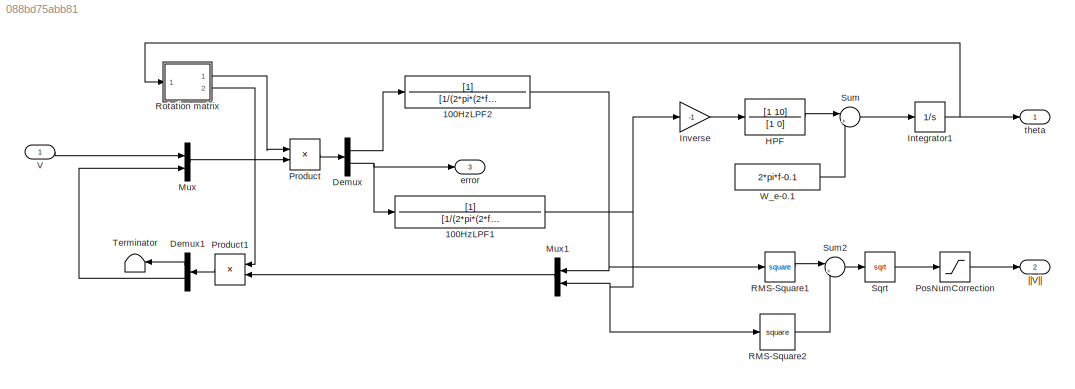
MODEL slx_088bd75abb81
KIND model
CONFIG AbsTol = auto
CONFIG EnableMultiTasking = on
CONFIG FixedStep = auto
CONFIG MaxStep = 1e-4
CONFIG MinStep = auto
CONFIG RelTol = 1e-3
CONFIG SampleTimeConstraint = Unconstrained
CONFIG Solver = VariableStepAuto
CONFIG SolverName = VariableStepAuto
CONFIG StartTime = 0.0
CONFIG StopTime = 1
BLOCK [TransferFcn] 100HzLPF1
  Denominator = [1/(2*pi*(2*f)) 1]
BLOCK [TransferFcn] 100HzLPF2
  Denominator = [1/(2*pi*(2*f)) 1]
BLOCK [Demux] Demux
  DisplayOption = bar
  Outputs = 2
  Ports = [1, 2]
BLOCK [Demux] Demux1
  DisplayOption = bar
  Outputs = 2
  Ports = [1, 2]
BLOCK [TransferFcn] HPF
  Denominator = [1 0]
  Numerator = [1 10]
BLOCK [Integrator] Integrator1
  InitialCondition = -pi/2
  Ports = [1, 1]
  WrapState = on
BLOCK [Gain] Inverse
  Gain = -1
  OutDataTypeStr = Inherit: Inherit via internal rule
  ParamDataTypeStr = Inherit: Inherit via internal rule
  SaturateOnIntegerOverflow = off
BLOCK [Mux] Mux
  DisplayOption = bar
  Inputs = 2
  Ports = [2, 1]
BLOCK [Mux] Mux1
  DisplayOption = bar
  Inputs = 2
  Ports = [2, 1]
BLOCK [Saturate] PosNumCorrection
  InputPortMap = u0
  LowerLimit = 0.01
  Ports = [1, 1]
  UpperLimit = inf
BLOCK [Product] Product
  InputSameDT = off
  Multiplication = Matrix(*)
  OutDataTypeStr = Inherit: Inherit via internal rule
  Ports = [2, 1]
  RndMeth = Floor
  SaturateOnIntegerOverflow = off
BLOCK [Product] Product1
  InputSameDT = off
  Multiplication = Matrix(*)
  OutDataTypeStr = Inherit: Inherit via internal rule
  Ports = [2, 1]
  RndMeth = Floor
  SaturateOnIntegerOverflow = off
BLOCK [Math] RMS-Square1
  Operator = square
  Ports = [1, 1]
BLOCK [Math] RMS-Square2
  Operator = square
  Ports = [1, 1]
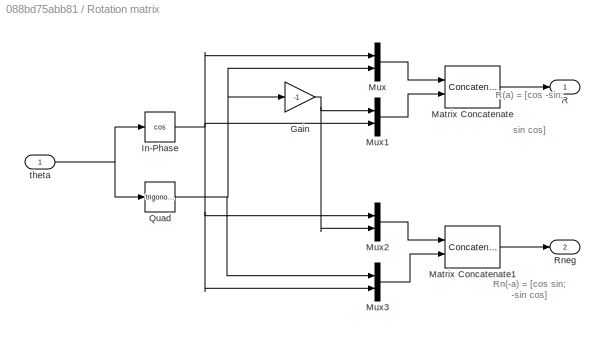
BLOCK [SubSystem] Rotation matrix
  Ports = [1, 2]
  RequestExecContextInheritance = off
  Variant = off
BLOCK [Gain] Rotation matrix/Gain
  Gain = -1
  OutDataTypeStr = Inherit: Inherit via internal rule
  ParamDataTypeStr = Inherit: Inherit via internal rule
  SaturateOnIntegerOverflow = off
BLOCK [Trigonometry] Rotation matrix/In-Phase
  Operator = cos
  Ports = [1, 1]
BLOCK [Concatenate] Rotation matrix/Matrix Concatenate
  ConcatenateDimension = 2
  Mode = Multidimensional array
  Ports = [2, 1]
BLOCK [Concatenate] Rotation matrix/Matrix Concatenate1
  ConcatenateDimension = 2
  Mode = Multidimensional array
  Ports = [2, 1]
BLOCK [Mux] Rotation matrix/Mux
  DisplayOption = bar
  Inputs = 2
  Ports = [2, 1]
BLOCK [Mux] Rotation matrix/Mux1
  DisplayOption = bar
  Inputs = 2
  Ports = [2, 1]
BLOCK [Mux] Rotation matrix/Mux2
  DisplayOption = bar
  Inputs = 2
  Ports = [2, 1]
BLOCK [Mux] Rotation matrix/Mux3
  DisplayOption = bar
  Inputs = 2
  Ports = [2, 1]
BLOCK [Trigonometry] Rotation matrix/Quad
  Ports = [1, 1]
BLOCK [Outport] Rotation matrix/R
  IconDisplay = Port number
BLOCK [Outport] Rotation matrix/Rneg
  IconDisplay = Port number
  Port = 2
BLOCK [Inport] Rotation matrix/theta
  IconDisplay = Port number
BLOCK [Sqrt] Sqrt
BLOCK [Sum] Sum
  IconShape = round
  InputSameDT = off
  Inputs = |++
  OutDataTypeStr = Inherit: Inherit via internal rule
  Ports = [2, 1]
  SaturateOnIntegerOverflow = off
BLOCK [Sum] Sum2
  IconShape = round
  InputSameDT = off
  Inputs = |++
  OutDataTypeStr = Inherit: Inherit via internal rule
  Ports = [2, 1]
  SaturateOnIntegerOverflow = off
BLOCK [Terminator] Terminator
BLOCK [Inport] V
  IconDisplay = Port number
  OutDataTypeStr = double
  PortDimensions = 1
  SampleTime = 0
  SamplingMode = Sample based
  SignalType = real
BLOCK [Constant] W_e-0.1
  Value = 2*pi*f-0.1
BLOCK [Outport] error
  IconDisplay = Port number
  OutDataTypeStr = double
  Port = 3
  PortDimensions = 1
  SampleTime = 0
  SamplingMode = Sample based
  SignalType = real
BLOCK [Outport] theta
  IconDisplay = Port number
  OutDataTypeStr = double
  PortDimensions = 1
  SampleTime = 0
  SamplingMode = Sample based
  SignalType = real
BLOCK [Outport] ||V||
  IconDisplay = Port number
  OutDataTypeStr = double
  Port = 2
  PortDimensions = 1
  SampleTime = 0
  SamplingMode = Sample based
  SignalType = real
ANNOTATION Rotation matrix: R(a) = [cos -sin; sin cos]
ANNOTATION Rotation matrix: Rn(-a) = [cos sin; -sin cos]
NET 100HzLPF1:1 -> Inverse:1, Mux1:2, RMS-Square2:1
NET 100HzLPF2:1 -> Mux1:1, RMS-Square1:1
LINE Demux1:1 -> Terminator:1
LINE Demux1:2 -> Mux:2
LINE Demux:1 -> 100HzLPF2:1
NET Demux:2 -> 100HzLPF1:1, error:1
LINE HPF:1 -> Sum:1
NET Integrator1:1 -> Rotation matrix:1, theta:1
LINE Inverse:1 -> HPF:1
LINE Mux1:1 -> Product1:2
LINE Mux:1 -> Product:2
LINE PosNumCorrection:1 -> ||V||:1
LINE Product1:1 -> Demux1:1
LINE Product:1 -> Demux:1
LINE RMS-Square1:1 -> Sum2:1
LINE RMS-Square2:1 -> Sum2:2
NET Rotation matrix/Gain:1 -> Rotation matrix/Mux1:1, Rotation matrix/Mux2:2
NET Rotation matrix/In-Phase:1 -> Rotation matrix/Mux1:2, Rotation matrix/Mux2:1, Rotation matrix/Mux3:2, Rotation matrix/Mux:1
LINE Rotation matrix/Matrix Concatenate1:1 -> Rotation matrix/Rneg:1
LINE Rotation matrix/Matrix Concatenate:1 -> Rotation matrix/R:1
LINE Rotation matrix/Mux1:1 -> Rotation matrix/Matrix Concatenate:2
LINE Rotation matrix/Mux2:1 -> Rotation matrix/Matrix Concatenate1:1
LINE Rotation matrix/Mux3:1 -> Rotation matrix/Matrix Concatenate1:2
LINE Rotation matrix/Mux:1 -> Rotation matrix/Matrix Concatenate:1
NET Rotation matrix/Quad:1 -> Rotation matrix/Gain:1, Rotation matrix/Mux3:1, Rotation matrix/Mux:2
NET Rotation matrix/theta:1 -> Rotation matrix/In-Phase:1, Rotation matrix/Quad:1
LINE Rotation matrix:1 -> Product:1
LINE Rotation matrix:2 -> Product1:1
LINE Sqrt:1 -> PosNumCorrection:1
LINE Sum2:1 -> Sqrt:1
LINE Sum:1 -> Integrator1:1
LINE V:1 -> Mux:1
LINE W_e-0.1:1 -> Sum:2
note: NET lines group one-source signal fan-out (src -> all destinations, sorted); 1:1 wires keep LINE
